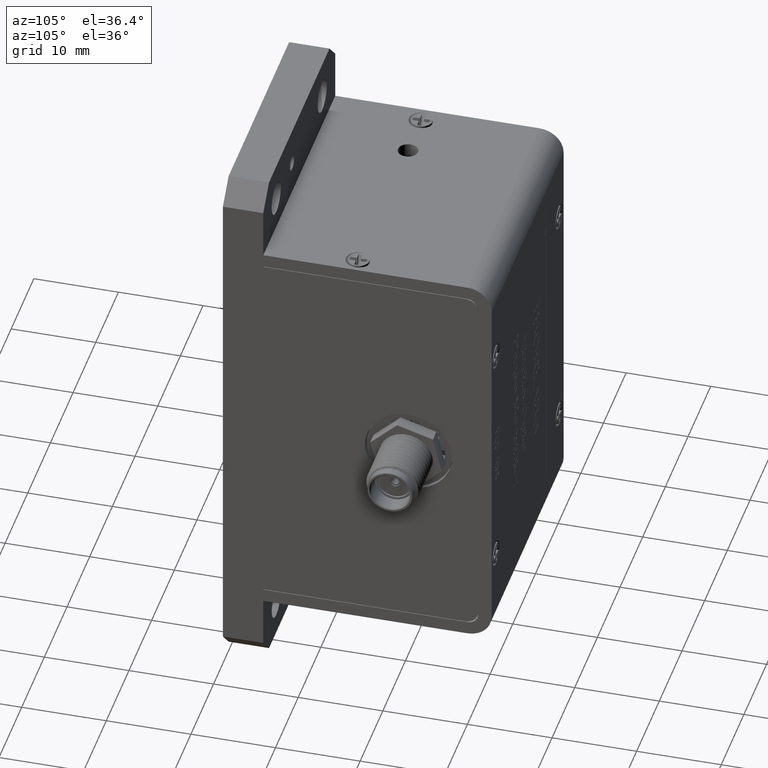
[diagram: clean part render]
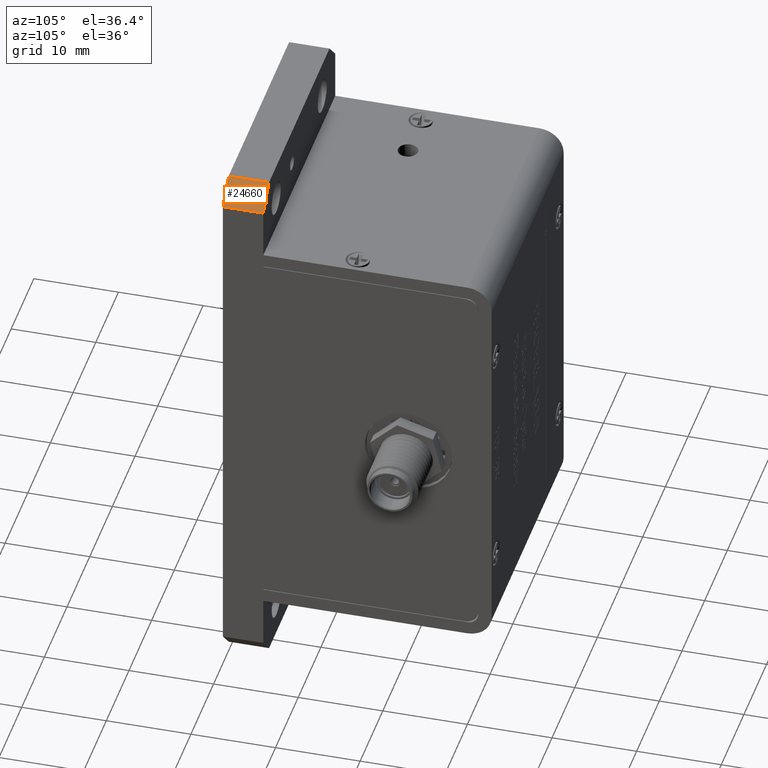
[diagram: same view with one face highlighted and labeled with its STEP entity id]
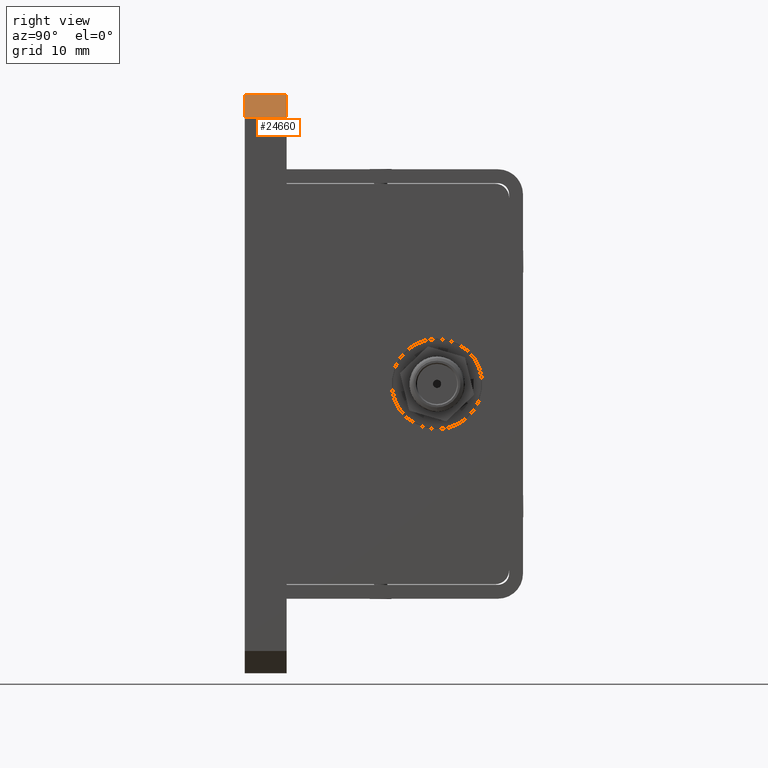
[diagram: same view with one face highlighted and labeled with its STEP entity id]
A machine part, auxiliary view. The second image highlights one B-rep face of the part: STEP entity #24660.
A second angle (right view) of the same face is appended — the face is thin or edge-on in the first view.
In plain terms, the highlighted planar face has unit normal (-0.7071, 0, -0.7071).
Its self-contained STEP definition (entity closure, byte-faithful):
#9477 = CARTESIAN_POINT ( 'NONE',  ( 15.87500000000000400, 0.0000000000000000000, 30.48000000000000000 ) ) ;
#9479 = LINE ( 'NONE', #9477, #9749 ) ;
#9663 = CARTESIAN_POINT ( 'NONE',  ( 15.87500000000000000, 0.0000000000000000000, 30.48000000000001100 ) ) ;
#9704 = CARTESIAN_POINT ( 'NONE',  ( 13.33499999999999600, 0.0000000000000000000, 33.02000000000000300 ) ) ;
#9721 = DIRECTION ( 'NONE',  ( -0.7071067811865484600, -0.0000000000000000000, 0.7071067811865465700 ) ) ;
#9749 = VECTOR ( 'NONE', #9721, 1000.000000000000000 ) ;
#10236 = VECTOR ( 'NONE', #10278, 1000.000000000000000 ) ;
#10247 = LINE ( 'NONE', #10251, #10236 ) ;
#10251 = CARTESIAN_POINT ( 'NONE',  ( -1.270000000000045300, 4.775199999999999900, 47.62499999999999300 ) ) ;
#10264 = CARTESIAN_POINT ( 'NONE',  ( 15.87500000000000000, 4.775199999999999900, 30.48000000000000000 ) ) ;
#10269 = CARTESIAN_POINT ( 'NONE',  ( 13.33499999999998300, 4.775199999999999900, 33.02000000000001000 ) ) ;
#10278 = DIRECTION ( 'NONE',  ( 0.7071067811865484600, -0.0000000000000000000, -0.7071067811865465700 ) ) ;
#10321 = DIRECTION ( 'NONE',  ( 0.0000000000000000000, 1.000000000000000000, 0.0000000000000000000 ) ) ;
#10322 = VECTOR ( 'NONE', #10321, 1000.000000000000000 ) ;
#10323 = LINE ( 'NONE', #10331, #10322 ) ;
#10331 = CARTESIAN_POINT ( 'NONE',  ( 13.33499999999999600, 4.775199999999999900, 33.02000000000000300 ) ) ;
#10443 = DIRECTION ( 'NONE',  ( 0.0000000000000000000, -1.000000000000000000, 0.0000000000000000000 ) ) ;
#10444 = VECTOR ( 'NONE', #10443, 1000.000000000000000 ) ;
#10445 = CARTESIAN_POINT ( 'NONE',  ( 15.87500000000000400, 4.775199999999999900, 30.48000000000000000 ) ) ;
#10446 = LINE ( 'NONE', #10445, #10444 ) ;
#23568 = VERTEX_POINT ( 'NONE', #9663 ) ;
#23622 = VERTEX_POINT ( 'NONE', #9704 ) ;
#23626 = EDGE_CURVE ( 'NONE', #23568, #23622, #9479, .T. ) ;
#23730 = EDGE_CURVE ( 'NONE', #23744, #23742, #10247, .T. ) ;
#23742 = VERTEX_POINT ( 'NONE', #10264 ) ;
#23744 = VERTEX_POINT ( 'NONE', #10269 ) ;
#23761 = EDGE_CURVE ( 'NONE', #23622, #23744, #10323, .T. ) ;
#23807 = EDGE_CURVE ( 'NONE', #23742, #23568, #10446, .T. ) ;
#24658 = ORIENTED_EDGE ( 'NONE', *, *, #23626, .F. ) ;
#24659 = EDGE_LOOP ( 'NONE', ( #24666, #24661, #24658, #24662 ) ) ;
#24660 = ADVANCED_FACE ( 'NONE', ( #40137 ), #40302, .F. ) ;
#24661 = ORIENTED_EDGE ( 'NONE', *, *, #23761, .F. ) ;
#24662 = ORIENTED_EDGE ( 'NONE', *, *, #23807, .F. ) ;
#24666 = ORIENTED_EDGE ( 'NONE', *, *, #23730, .F. ) ;
#40137 = FACE_OUTER_BOUND ( 'NONE', #24659, .T. ) ;
#40298 = DIRECTION ( 'NONE',  ( -0.7071067811865484600, 0.0000000000000000000, 0.7071067811865465700 ) ) ;
#40299 = DIRECTION ( 'NONE',  ( -0.7071067811865465700, 0.0000000000000000000, -0.7071067811865484600 ) ) ;
#40300 = CARTESIAN_POINT ( 'NONE',  ( 15.87500000000000400, 4.775199999999999900, 30.48000000000000000 ) ) ;
#40301 = AXIS2_PLACEMENT_3D ( 'NONE', #40300, #40299, #40298 ) ;
#40302 = PLANE ( 'NONE',  #40301 ) ;